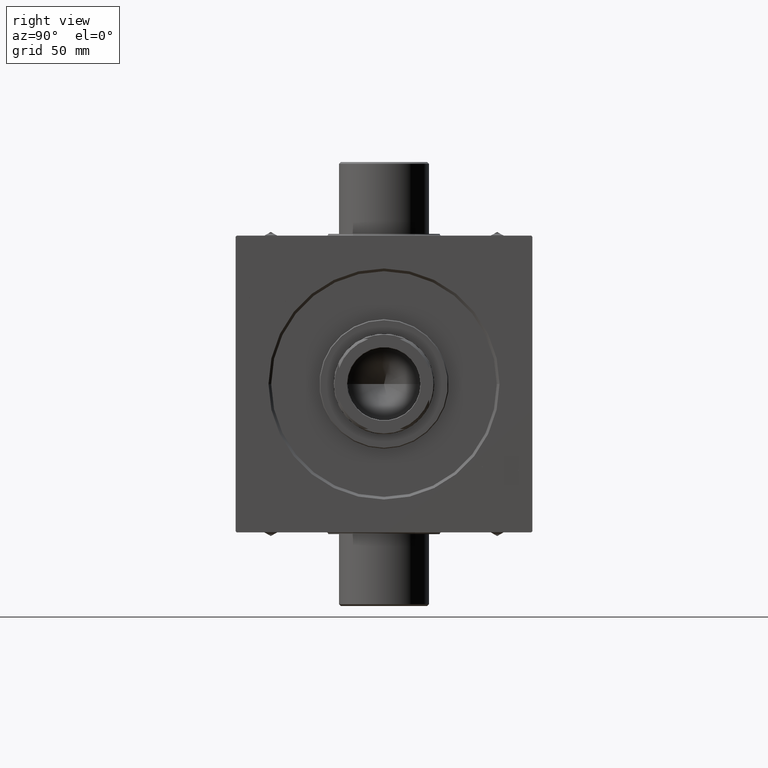
[diagram: clean part render]
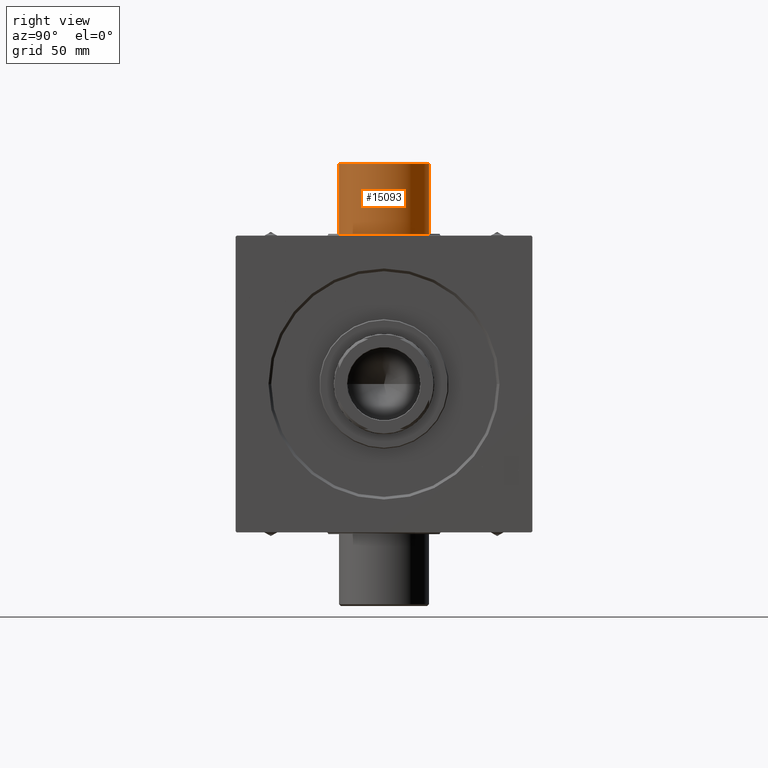
[diagram: same view with one face highlighted and labeled with its STEP entity id]
A machine part, right view. The second image highlights one B-rep face of the part: STEP entity #15093.
In plain terms, the highlighted cylindrical surface (partial cylindrical patch) has radius 25 mm, axis along (0, 0, -1).
Its self-contained STEP definition (entity closure, byte-faithful):
#735 = AXIS2_PLACEMENT_3D ( 'NONE', #30230, #23556, #12662 ) ;
#1264 = FACE_OUTER_BOUND ( 'NONE', #5007, .T. ) ;
#2024 = VERTEX_POINT ( 'NONE', #34737 ) ;
#2780 = EDGE_CURVE ( 'NONE', #13975, #2024, #5653, .T. ) ;
#2998 = CIRCLE ( 'NONE', #735, 25.00000000000000355 ) ;
#3301 = CARTESIAN_POINT ( 'NONE',  ( 177.0000000000000284, -123.5000000000000284, 25.00000000000000000 ) ) ;
#4916 = AXIS2_PLACEMENT_3D ( 'NONE', #8136, #18805, #22590 ) ;
#5007 = EDGE_LOOP ( 'NONE', ( #36729, #43649, #34944, #31073 ) ) ;
#5653 = CIRCLE ( 'NONE', #4916, 25.00000000000000355 ) ;
#8136 = CARTESIAN_POINT ( 'NONE',  ( 177.0000000000000284, -83.50000000000002842, -8.673617379884004657E-17 ) ) ;
#9102 = CARTESIAN_POINT ( 'NONE',  ( 177.0000000000000284, -122.5000000000000995, 25.00000000000000000 ) ) ;
#11114 = LINE ( 'NONE', #3301, #20618 ) ;
#12081 = DIRECTION ( 'NONE',  ( -0.000000000000000000, 1.000000000000000000, 8.673617379884037937E-17 ) ) ;
#12662 = DIRECTION ( 'NONE',  ( 0.000000000000000000, 0.000000000000000000, -1.000000000000000000 ) ) ;
#12778 = LINE ( 'NONE', #44557, #21879 ) ;
#13564 = VERTEX_POINT ( 'NONE', #9102 ) ;
#13975 = VERTEX_POINT ( 'NONE', #45496 ) ;
#15093 = ADVANCED_FACE ( 'NONE', ( #1264 ), #37535, .T. ) ;
#18382 = VERTEX_POINT ( 'NONE', #39884 ) ;
#18805 = DIRECTION ( 'NONE',  ( 0.000000000000000000, -1.000000000000000000, -8.673617379884036705E-17 ) ) ;
#19722 = EDGE_CURVE ( 'NONE', #18382, #13975, #12778, .T. ) ;
#20618 = VECTOR ( 'NONE', #28664, 1000.000000000000000 ) ;
#21879 = VECTOR ( 'NONE', #12081, 1000.000000000000000 ) ;
#22590 = DIRECTION ( 'NONE',  ( 0.000000000000000000, 0.000000000000000000, -1.000000000000000000 ) ) ;
#23556 = DIRECTION ( 'NONE',  ( 0.000000000000000000, 1.000000000000000000, 8.673617379884060124E-17 ) ) ;
#27831 = EDGE_CURVE ( 'NONE', #13564, #2024, #11114, .T. ) ;
#28664 = DIRECTION ( 'NONE',  ( -0.000000000000000000, 1.000000000000000000, 8.673617379884037937E-17 ) ) ;
#30192 = CARTESIAN_POINT ( 'NONE',  ( 177.0000000000000284, -123.5000000000000284, -3.556183125752455332E-15 ) ) ;
#30230 = CARTESIAN_POINT ( 'NONE',  ( 177.0000000000000284, -122.5000000000000995, -3.469446951953621289E-15 ) ) ;
#31073 = ORIENTED_EDGE ( 'NONE', *, *, #27831, .F. ) ;
#34737 = CARTESIAN_POINT ( 'NONE',  ( 177.0000000000000284, -83.50000000000002842, 25.00000000000000711 ) ) ;
#34944 = ORIENTED_EDGE ( 'NONE', *, *, #2780, .T. ) ;
#36729 = ORIENTED_EDGE ( 'NONE', *, *, #39088, .T. ) ;
#37535 = CYLINDRICAL_SURFACE ( 'NONE', #39186, 25.00000000000000355 ) ;
#39088 = EDGE_CURVE ( 'NONE', #13564, #18382, #2998, .T. ) ;
#39186 = AXIS2_PLACEMENT_3D ( 'NONE', #30192, #44637, #40387 ) ;
#39884 = CARTESIAN_POINT ( 'NONE',  ( 177.0000000000000284, -122.5000000000000995, -25.00000000000000711 ) ) ;
#40387 = DIRECTION ( 'NONE',  ( 0.000000000000000000, 0.000000000000000000, 1.000000000000000000 ) ) ;
#43649 = ORIENTED_EDGE ( 'NONE', *, *, #19722, .T. ) ;
#44557 = CARTESIAN_POINT ( 'NONE',  ( 177.0000000000000284, -123.5000000000000284, -25.00000000000000711 ) ) ;
#44637 = DIRECTION ( 'NONE',  ( -0.000000000000000000, 1.000000000000000000, 8.673617379884037937E-17 ) ) ;
#45496 = CARTESIAN_POINT ( 'NONE',  ( 177.0000000000000284, -83.50000000000002842, -25.00000000000000355 ) ) ;